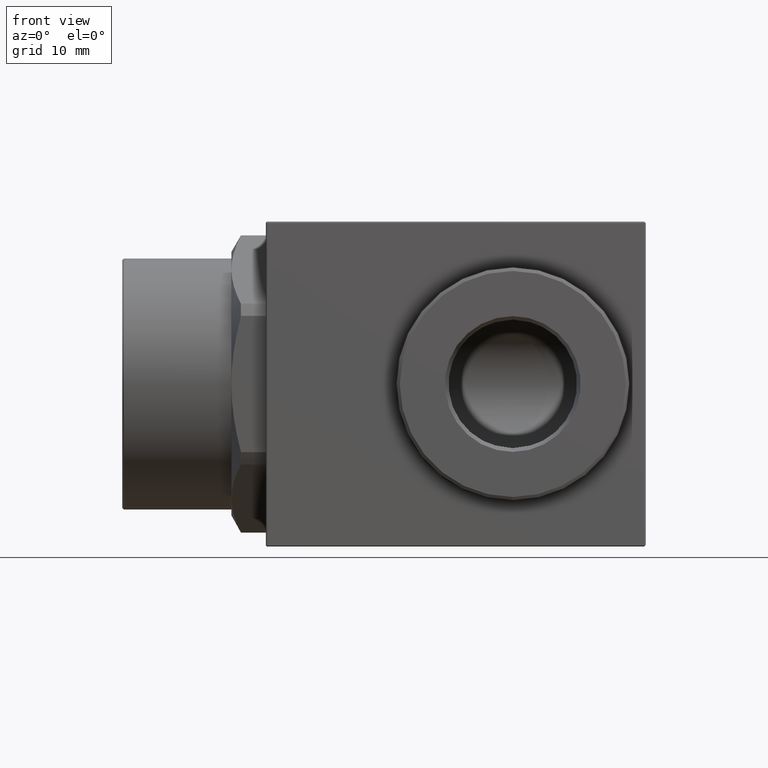
[diagram: clean part render]
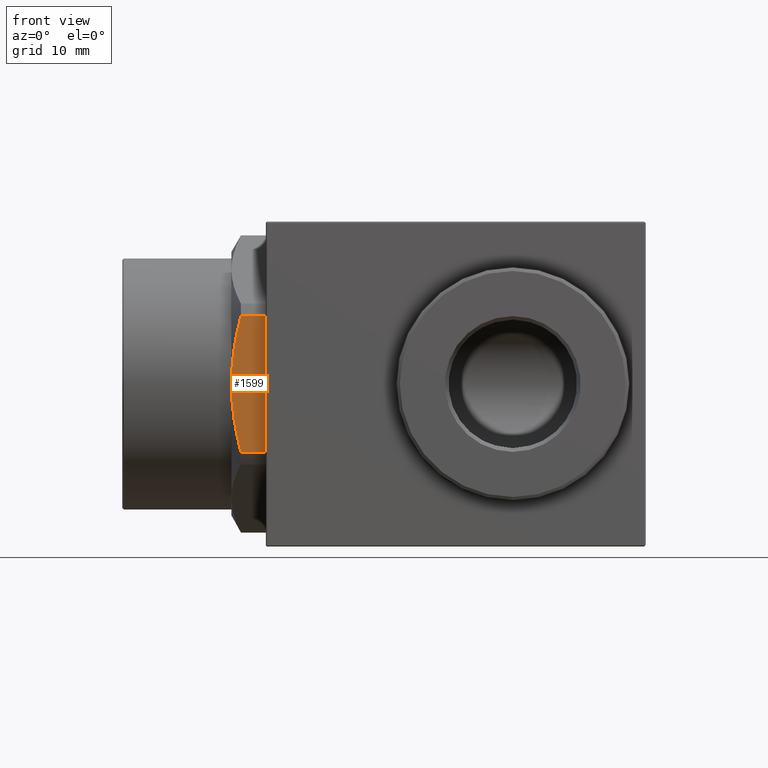
[diagram: same view with one face highlighted and labeled with its STEP entity id]
A machine part, front view. The second image highlights one B-rep face of the part: STEP entity #1599.
In plain terms, the highlighted planar face has unit normal (0, 1, 0).
Its self-contained STEP definition (entity closure, byte-faithful):
#1564 = VERTEX_POINT ( 'NONE', #2940 ) ;
#1570 = VERTEX_POINT ( 'NONE', #2932 ) ;
#1576 = VERTEX_POINT ( 'NONE', #2986 ) ;
#1578 = EDGE_CURVE ( 'NONE', #1576, #1570, #2985, .T. ) ;
#1584 = VERTEX_POINT ( 'NONE', #2963 ) ;
#1587 = EDGE_CURVE ( 'NONE', #1588, #1584, #2746, .T. ) ;
#1588 = VERTEX_POINT ( 'NONE', #3023 ) ;
#1599 = ADVANCED_FACE ( 'NONE', ( #3006 ), #3004, .F. ) ;
#1600 = EDGE_LOOP ( 'NONE', ( #1601, #1603, #1604, #1606, #1607 ) ) ;
#1601 = ORIENTED_EDGE ( 'NONE', *, *, #1602, .F. ) ;
#1602 = EDGE_CURVE ( 'NONE', #1570, #1564, #3050, .T. ) ;
#1603 = ORIENTED_EDGE ( 'NONE', *, *, #1578, .F. ) ;
#1604 = ORIENTED_EDGE ( 'NONE', *, *, #1605, .T. ) ;
#1605 = EDGE_CURVE ( 'NONE', #1576, #1588, #3049, .T. ) ;
#1606 = ORIENTED_EDGE ( 'NONE', *, *, #1587, .T. ) ;
#1607 = ORIENTED_EDGE ( 'NONE', *, *, #1664, .F. ) ;
#1664 = EDGE_CURVE ( 'NONE', #1564, #1584, #3150, .T. ) ;
#2744 = DIRECTION ( 'NONE',  ( -1.000000000000000000, 0.0000000000000000000, 0.0000000000000000000 ) ) ;
#2745 = CARTESIAN_POINT ( 'NONE',  ( 2.221385264406608300, -0.8250000000000000700, 0.4251952676418212000 ) ) ;
#2746 = LINE ( 'NONE', #2745, #2961 ) ;
#2932 = CARTESIAN_POINT ( 'NONE',  ( -0.5854607534898198500, -0.8250000000000000700, -0.4251952676418213600 ) ) ;
#2940 = CARTESIAN_POINT ( 'NONE',  ( -0.6449999999999998000, -0.8250000000000000700, 0.0000000000000000000 ) ) ;
#2961 = VECTOR ( 'NONE', #2744, 39.37007874015748100 ) ;
#2963 = CARTESIAN_POINT ( 'NONE',  ( -0.5854607534898198500, -0.8250000000000000700, 0.4251952676418212000 ) ) ;
#2982 = DIRECTION ( 'NONE',  ( -1.000000000000000000, 0.0000000000000000000, 0.0000000000000000000 ) ) ;
#2983 = VECTOR ( 'NONE', #2982, 39.37007874015748100 ) ;
#2984 = CARTESIAN_POINT ( 'NONE',  ( 2.221385264406608300, -0.8250000000000000700, -0.4251952676418213600 ) ) ;
#2985 = LINE ( 'NONE', #2984, #2983 ) ;
#2986 = CARTESIAN_POINT ( 'NONE',  ( -0.4299999999999999900, -0.8250000000000000700, -0.4251952676418213600 ) ) ;
#3004 = PLANE ( 'NONE',  #3054 ) ;
#3006 = FACE_OUTER_BOUND ( 'NONE', #1600, .T. ) ;
#3023 = CARTESIAN_POINT ( 'NONE',  ( -0.4300000000000000500, -0.8250000000000000700, 0.4251952676418212000 ) ) ;
#3038 = DIRECTION ( 'NONE',  ( 0.0000000000000000000, 0.0000000000000000000, 1.000000000000000000 ) ) ;
#3039 = VECTOR ( 'NONE', #3038, 39.37007874015748100 ) ;
#3040 = CARTESIAN_POINT ( 'NONE',  ( -0.4300000000000000500, -0.8250000000000000700, 0.4251952676418213600 ) ) ;
#3041 = CARTESIAN_POINT ( 'NONE',  ( -0.6449999999999998000, -0.8250000000000000700, 0.0000000000000000000 ) ) ;
#3042 = CARTESIAN_POINT ( 'NONE',  ( -0.6449999999999995700, -0.8250000000000000700, -0.07159162571875797600 ) ) ;
#3043 = CARTESIAN_POINT ( 'NONE',  ( -0.6395422550498124400, -0.8250000000000000700, -0.1428449681334752800 ) ) ;
#3044 = CARTESIAN_POINT ( 'NONE',  ( -0.6241270319372571600, -0.8250000000000000700, -0.2492769365211511500 ) ) ;
#3045 = CARTESIAN_POINT ( 'NONE',  ( -0.6177988229589295200, -0.8250000000000000700, -0.2846805127587406200 ) ) ;
#3046 = CARTESIAN_POINT ( 'NONE',  ( -0.6030416995710993200, -0.8250000000000001800, -0.3553574587877481600 ) ) ;
#3047 = CARTESIAN_POINT ( 'NONE',  ( -0.5946477351457637500, -0.8250000000000000700, -0.3904615295399183600 ) ) ;
#3048 = CARTESIAN_POINT ( 'NONE',  ( -0.5854607534898198500, -0.8250000000000000700, -0.4251952676418213600 ) ) ;
#3049 = LINE ( 'NONE', #3040, #3039 ) ;
#3050 = B_SPLINE_CURVE_WITH_KNOTS ( 'NONE', 3,
 ( #3048, #3047, #3046, #3045, #3044, #3043, #3042, #3041 ),
 .UNSPECIFIED., .F., .F.,
 ( 4, 2, 2, 4 ),
 ( 0.02204991415989466700, 0.02477244303429356300, 0.02749497190869245500, 0.03294002965749024500 ),
 .UNSPECIFIED. ) ;
#3051 = DIRECTION ( 'NONE',  ( 0.0000000000000000000, 0.0000000000000000000, 1.000000000000000000 ) ) ;
#3052 = DIRECTION ( 'NONE',  ( 0.0000000000000000000, 1.000000000000000000, 0.0000000000000000000 ) ) ;
#3053 = CARTESIAN_POINT ( 'NONE',  ( 2.221385264406608300, -0.8250000000000000700, 0.4251952676418213600 ) ) ;
#3054 = AXIS2_PLACEMENT_3D ( 'NONE', #3053, #3052, #3051 ) ;
#3140 = CARTESIAN_POINT ( 'NONE',  ( -0.5854607534898198500, -0.8250000000000000700, 0.4251952676418212000 ) ) ;
#3141 = CARTESIAN_POINT ( 'NONE',  ( -0.6036972014282675500, -0.8249999999999999600, 0.3562477035424412900 ) ) ;
#3142 = CARTESIAN_POINT ( 'NONE',  ( -0.6186884554537132000, -0.8249999999999999600, 0.2863824225437864900 ) ) ;
#3143 = CARTESIAN_POINT ( 'NONE',  ( -0.6342463889656320100, -0.8250000000000000700, 0.1796250457992162900 ) ) ;
#3144 = CARTESIAN_POINT ( 'NONE',  ( -0.6382803274895767500, -0.8249999999999998400, 0.1435636189150072100 ) ) ;
#3145 = CARTESIAN_POINT ( 'NONE',  ( -0.6436499504944813700, -0.8250000000000000700, 0.07165723835564576100 ) ) ;
#3146 = CARTESIAN_POINT ( 'NONE',  ( -0.6449999999999996800, -0.8250000000000000700, 0.03578677962581804100 ) ) ;
#3147 = CARTESIAN_POINT ( 'NONE',  ( -0.6449999999999998000, -0.8250000000000000700, 0.0000000000000000000 ) ) ;
#3150 = B_SPLINE_CURVE_WITH_KNOTS ( 'NONE', 3,
 ( #3147, #3146, #3145, #3144, #3143, #3142, #3141, #3140 ),
 .UNSPECIFIED., .F., .F.,
 ( 4, 2, 2, 4 ),
 ( 0.03294002965749024500, 0.03566187148954439600, 0.03838371332159854600, 0.04382739698570685400 ),
 .UNSPECIFIED. ) ;